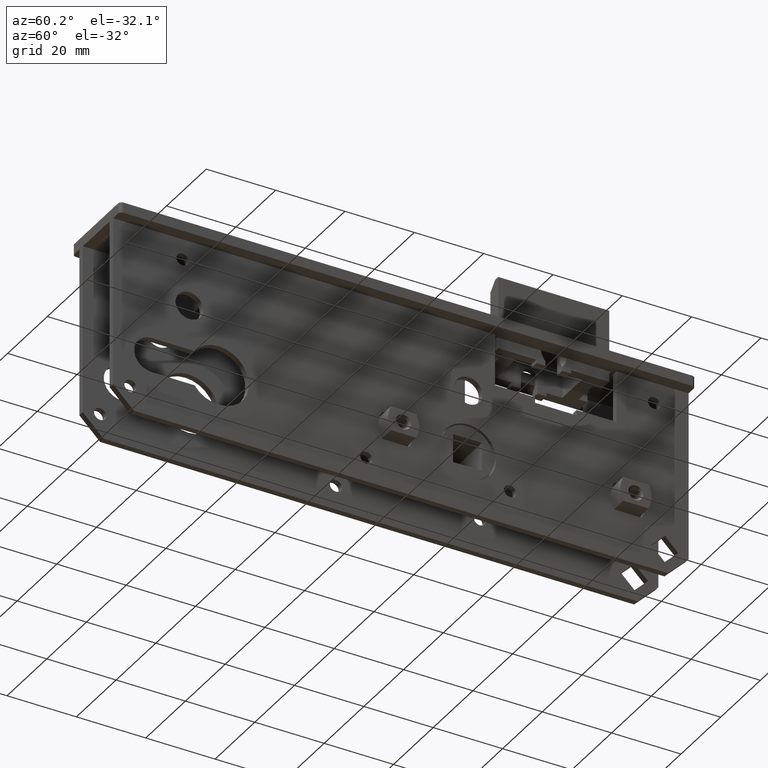
[diagram: clean part render]
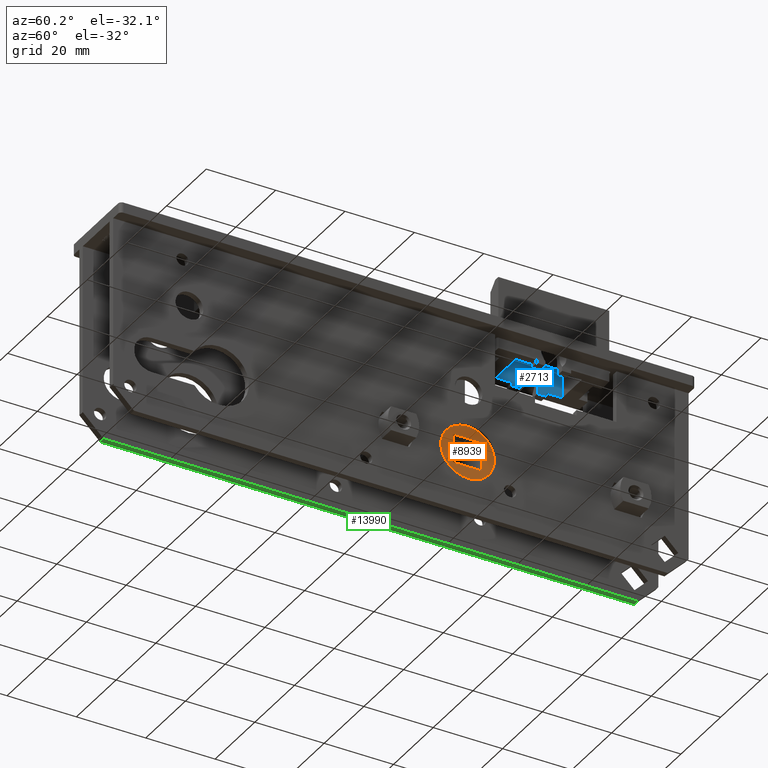
[diagram: same view with three faces highlighted in distinct colors, each labeled with its STEP entity id]
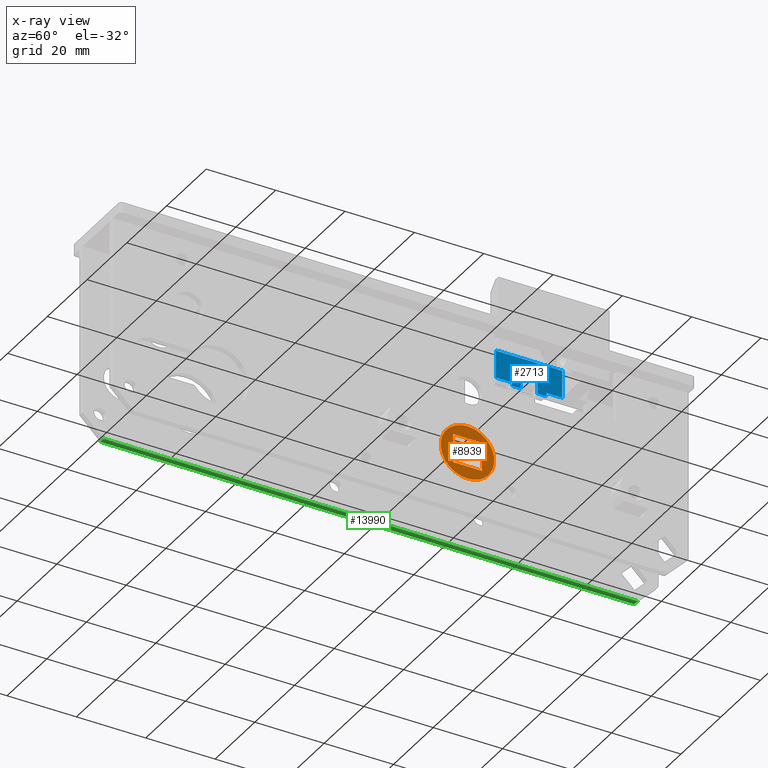
[diagram: x-ray of the same camera — body ghosted, the three highlighted faces saturated]
A machine part, auxiliary view with three faces highlighted in distinct colors.
The next image is the same camera in x-ray (body ghosted, the three faces saturated) — at least one of them is partly hidden behind the body in this view.
Their STEP definitions:

[orange] entity #8939 — the highlighted planar face has unit normal (1, 0, 0).
#435 = CARTESIAN_POINT ( 'NONE',  ( 8.000000000000000000, 0.000000000000000000, -7.750000000000000000 ) ) ;
#1184 = CARTESIAN_POINT ( 'NONE',  ( 8.000000000000000000, 4.150000000000000355, -4.150000000000001243 ) ) ;
#1647 = DIRECTION ( 'NONE',  ( 0.000000000000000000, 0.000000000000000000, -1.000000000000000000 ) ) ;
#1867 = VERTEX_POINT ( 'NONE', #1184 ) ;
#2110 = ORIENTED_EDGE ( 'NONE', *, *, #3452, .F. ) ;
#2268 = AXIS2_PLACEMENT_3D ( 'NONE', #17330, #11102, #1647 ) ;
#2835 = VECTOR ( 'NONE', #14314, 1000.000000000000000 ) ;
#2871 = AXIS2_PLACEMENT_3D ( 'NONE', #5149, #13230, #11490 ) ;
#3452 = EDGE_CURVE ( 'NONE', #7979, #8262, #3741, .T. ) ;
#3490 = VECTOR ( 'NONE', #17403, 1000.000000000000000 ) ;
#3741 = LINE ( 'NONE', #10890, #3490 ) ;
#3878 = DIRECTION ( 'NONE',  ( -0.000000000000000000, -0.000000000000000000, 1.000000000000000000 ) ) ;
#4729 = PLANE ( 'NONE',  #2268 ) ;
#5149 = CARTESIAN_POINT ( 'NONE',  ( 8.000000000000000000, 0.000000000000000000, 0.000000000000000000 ) ) ;
#7503 = LINE ( 'NONE', #11719, #15649 ) ;
#7708 = CIRCLE ( 'NONE', #2871, 7.750000000000000000 ) ;
#7735 = EDGE_LOOP ( 'NONE', ( #17326, #14357, #2110, #10329 ) ) ;
#7979 = VERTEX_POINT ( 'NONE', #12034 ) ;
#8000 = LINE ( 'NONE', #18938, #2835 ) ;
#8233 = FACE_OUTER_BOUND ( 'NONE', #16325, .T. ) ;
#8262 = VERTEX_POINT ( 'NONE', #9260 ) ;
#8939 = ADVANCED_FACE ( 'NONE', ( #8233, #18853 ), #4729, .T. ) ;
#9164 = VECTOR ( 'NONE', #17152, 1000.000000000000000 ) ;
#9246 = CARTESIAN_POINT ( 'NONE',  ( 8.000000000000000000, 4.150000000000000355, -4.150000000000001243 ) ) ;
#9260 = CARTESIAN_POINT ( 'NONE',  ( 8.000000000000000000, -4.150000000000001243, -4.150000000000002132 ) ) ;
#10329 = ORIENTED_EDGE ( 'NONE', *, *, #15739, .F. ) ;
#10890 = CARTESIAN_POINT ( 'NONE',  ( 8.000000000000000000, -4.150000000000001243, 4.149999999999998579 ) ) ;
#11102 = DIRECTION ( 'NONE',  ( 1.000000000000000000, 0.000000000000000000, 0.000000000000000000 ) ) ;
#11490 = DIRECTION ( 'NONE',  ( 0.000000000000000000, 0.000000000000000000, -1.000000000000000000 ) ) ;
#11719 = CARTESIAN_POINT ( 'NONE',  ( 8.000000000000000000, 4.150000000000000355, 4.150000000000000355 ) ) ;
#12034 = CARTESIAN_POINT ( 'NONE',  ( 8.000000000000000000, -4.150000000000001243, 4.149999999999998579 ) ) ;
#12139 = LINE ( 'NONE', #9246, #9164 ) ;
#12782 = EDGE_CURVE ( 'NONE', #1867, #19536, #7503, .T. ) ;
#13230 = DIRECTION ( 'NONE',  ( 1.000000000000000000, 0.000000000000000000, 0.000000000000000000 ) ) ;
#14272 = EDGE_CURVE ( 'NONE', #8262, #1867, #12139, .T. ) ;
#14314 = DIRECTION ( 'NONE',  ( 0.000000000000000000, -1.000000000000000000, -2.090028284309405749E-16 ) ) ;
#14357 = ORIENTED_EDGE ( 'NONE', *, *, #14272, .F. ) ;
#15020 = ORIENTED_EDGE ( 'NONE', *, *, #17936, .T. ) ;
#15649 = VECTOR ( 'NONE', #3878, 1000.000000000000000 ) ;
#15739 = EDGE_CURVE ( 'NONE', #19536, #7979, #8000, .T. ) ;
#16325 = EDGE_LOOP ( 'NONE', ( #15020 ) ) ;
#17152 = DIRECTION ( 'NONE',  ( -0.000000000000000000, 1.000000000000000000, 1.045014142154702874E-16 ) ) ;
#17326 = ORIENTED_EDGE ( 'NONE', *, *, #12782, .F. ) ;
#17330 = CARTESIAN_POINT ( 'NONE',  ( 8.000000000000000000, 0.000000000000000000, 0.000000000000000000 ) ) ;
#17403 = DIRECTION ( 'NONE',  ( 0.000000000000000000, 0.000000000000000000, -1.000000000000000000 ) ) ;
#17527 = CARTESIAN_POINT ( 'NONE',  ( 8.000000000000000000, 4.150000000000000355, 4.150000000000000355 ) ) ;
#17936 = EDGE_CURVE ( 'NONE', #19951, #19951, #7708, .T. ) ;
#18853 = FACE_BOUND ( 'NONE', #7735, .T. ) ;
#18938 = CARTESIAN_POINT ( 'NONE',  ( 8.000000000000000000, 4.150000000000000355, 4.150000000000000355 ) ) ;
#19536 = VERTEX_POINT ( 'NONE', #17527 ) ;
#19951 = VERTEX_POINT ( 'NONE', #435 ) ;

[blue] entity #2713 — the highlighted planar face has unit normal (-1, 0, 0).
#332 = ORIENTED_EDGE ( 'NONE', *, *, #2511, .T. ) ;
#333 = CARTESIAN_POINT ( 'NONE',  ( -4.949999999999997513, 0.000000000000000000, -7.500000000000000888 ) ) ;
#736 = EDGE_CURVE ( 'NONE', #2391, #18766, #19256, .T. ) ;
#752 = VECTOR ( 'NONE', #13469, 1000.000000000000000 ) ;
#780 = CARTESIAN_POINT ( 'NONE',  ( -4.949999999999995737, -4.999999999999999112, -11.50000000000000000 ) ) ;
#888 = ORIENTED_EDGE ( 'NONE', *, *, #20172, .F. ) ;
#1035 = DIRECTION ( 'NONE',  ( 1.362348279562937289E-16, 1.000000000000000000, -0.000000000000000000 ) ) ;
#1123 = LINE ( 'NONE', #10937, #4565 ) ;
#1268 = VERTEX_POINT ( 'NONE', #19941 ) ;
#1295 = FACE_OUTER_BOUND ( 'NONE', #10989, .T. ) ;
#1436 = CARTESIAN_POINT ( 'NONE',  ( -4.949999999999998401, -9.549999999999997158, -2.500000000000000444 ) ) ;
#1567 = LINE ( 'NONE', #16765, #14760 ) ;
#1829 = EDGE_CURVE ( 'NONE', #18637, #5247, #10733, .T. ) ;
#1857 = AXIS2_PLACEMENT_3D ( 'NONE', #333, #15943, #12848 ) ;
#2086 = ORIENTED_EDGE ( 'NONE', *, *, #4411, .T. ) ;
#2121 = VECTOR ( 'NONE', #11729, 1000.000000000000000 ) ;
#2236 = DIRECTION ( 'NONE',  ( -1.362348279562937289E-16, -1.000000000000000000, 0.000000000000000000 ) ) ;
#2391 = VERTEX_POINT ( 'NONE', #1436 ) ;
#2511 = EDGE_CURVE ( 'NONE', #20103, #9165, #13139, .T. ) ;
#2709 = LINE ( 'NONE', #19732, #752 ) ;
#2713 = ADVANCED_FACE ( 'NONE', ( #1295 ), #3944, .F. ) ;
#2963 = VECTOR ( 'NONE', #14587, 1000.000000000000000 ) ;
#2974 = DIRECTION ( 'NONE',  ( -0.000000000000000000, -0.000000000000000000, -1.000000000000000000 ) ) ;
#3448 = ORIENTED_EDGE ( 'NONE', *, *, #4656, .F. ) ;
#3944 = PLANE ( 'NONE',  #19389 ) ;
#4411 = EDGE_CURVE ( 'NONE', #16479, #14769, #12838, .T. ) ;
#4565 = VECTOR ( 'NONE', #2974, 1000.000000000000000 ) ;
#4656 = EDGE_CURVE ( 'NONE', #10928, #5247, #2709, .T. ) ;
#5105 = EDGE_CURVE ( 'NONE', #14769, #15410, #15516, .T. ) ;
#5247 = VERTEX_POINT ( 'NONE', #20151 ) ;
#5350 = VECTOR ( 'NONE', #12599, 1000.000000000000000 ) ;
#5354 = CARTESIAN_POINT ( 'NONE',  ( -4.949999999999995737, 5.000000000000000888, -11.50000000000000000 ) ) ;
#5554 = CARTESIAN_POINT ( 'NONE',  ( -4.949999999999997513, 2.399999999999999911, -7.500000000000000888 ) ) ;
#5702 = CARTESIAN_POINT ( 'NONE',  ( -4.949999999999995737, 9.550000000000004263, -10.50000000000000000 ) ) ;
#6032 = CARTESIAN_POINT ( 'NONE',  ( -4.949999999999996625, 2.399999999999999467, -2.500000000000001332 ) ) ;
#6994 = EDGE_CURVE ( 'NONE', #18766, #1268, #1123, .T. ) ;
#7184 = CARTESIAN_POINT ( 'NONE',  ( -4.949999999999995737, 9.550000000000004263, -2.500000000000000444 ) ) ;
#7269 = ORIENTED_EDGE ( 'NONE', *, *, #6994, .F. ) ;
#8296 = EDGE_CURVE ( 'NONE', #2391, #18637, #18097, .T. ) ;
#8555 = CARTESIAN_POINT ( 'NONE',  ( -4.949999999999995737, -2.399999999999999911, -11.50000000000000000 ) ) ;
#8678 = CARTESIAN_POINT ( 'NONE',  ( -4.949999999999997513, -2.399999999999999911, -7.500000000000000000 ) ) ;
#9165 = VERTEX_POINT ( 'NONE', #11279 ) ;
#9510 = CARTESIAN_POINT ( 'NONE',  ( -4.949999999999995737, 9.550000000000004263, -10.50000000000000000 ) ) ;
#9599 = DIRECTION ( 'NONE',  ( 1.477060964384026220E-32, 1.084202172485504681E-16, -1.000000000000000000 ) ) ;
#10718 = VECTOR ( 'NONE', #14023, 1000.000000000000000 ) ;
#10733 = LINE ( 'NONE', #5702, #11914 ) ;
#10783 = LINE ( 'NONE', #6032, #18649 ) ;
#10928 = VERTEX_POINT ( 'NONE', #780 ) ;
#10937 = CARTESIAN_POINT ( 'NONE',  ( -4.949999999999995737, 9.550000000000004263, -2.500000000000000444 ) ) ;
#10989 = EDGE_LOOP ( 'NONE', ( #888, #2086, #13126, #18408, #11209, #332, #11916, #7269, #12604, #17715, #20088, #3448 ) ) ;
#11150 = EDGE_CURVE ( 'NONE', #9165, #1268, #13016, .T. ) ;
#11209 = ORIENTED_EDGE ( 'NONE', *, *, #19415, .F. ) ;
#11279 = CARTESIAN_POINT ( 'NONE',  ( -4.949999999999995737, 5.000000000000000888, -10.50000000000000000 ) ) ;
#11659 = CARTESIAN_POINT ( 'NONE',  ( -4.949999999999995737, -4.999999999999999112, -11.50000000000000000 ) ) ;
#11729 = DIRECTION ( 'NONE',  ( -0.000000000000000000, -1.000000000000000000, -0.000000000000000000 ) ) ;
#11914 = VECTOR ( 'NONE', #1035, 1000.000000000000000 ) ;
#11916 = ORIENTED_EDGE ( 'NONE', *, *, #11150, .T. ) ;
#12088 = EDGE_CURVE ( 'NONE', #15410, #17769, #10783, .T. ) ;
#12599 = DIRECTION ( 'NONE',  ( 1.362348279562937289E-16, 1.000000000000000000, -0.000000000000000000 ) ) ;
#12604 = ORIENTED_EDGE ( 'NONE', *, *, #736, .F. ) ;
#12838 = LINE ( 'NONE', #16082, #2963 ) ;
#12848 = DIRECTION ( 'NONE',  ( 0.000000000000000000, -1.000000000000000000, 0.000000000000000000 ) ) ;
#13016 = LINE ( 'NONE', #9510, #5350 ) ;
#13126 = ORIENTED_EDGE ( 'NONE', *, *, #5105, .T. ) ;
#13139 = LINE ( 'NONE', #5354, #15329 ) ;
#13469 = DIRECTION ( 'NONE',  ( -0.000000000000000000, -0.000000000000000000, 1.000000000000000000 ) ) ;
#14023 = DIRECTION ( 'NONE',  ( -0.000000000000000000, -0.000000000000000000, -1.000000000000000000 ) ) ;
#14088 = CARTESIAN_POINT ( 'NONE',  ( -4.949999999999998401, -9.549999999999997158, -2.500000000000000444 ) ) ;
#14425 = CARTESIAN_POINT ( 'NONE',  ( -4.949999999999995737, 5.000000000000000888, -11.50000000000000000 ) ) ;
#14587 = DIRECTION ( 'NONE',  ( 0.000000000000000000, 0.000000000000000000, 1.000000000000000000 ) ) ;
#14760 = VECTOR ( 'NONE', #18396, 1000.000000000000000 ) ;
#14769 = VERTEX_POINT ( 'NONE', #8678 ) ;
#15049 = VECTOR ( 'NONE', #18713, 1000.000000000000000 ) ;
#15329 = VECTOR ( 'NONE', #18105, 1000.000000000000000 ) ;
#15410 = VERTEX_POINT ( 'NONE', #5554 ) ;
#15516 = CIRCLE ( 'NONE', #1857, 2.399999999999999911 ) ;
#15943 = DIRECTION ( 'NONE',  ( -1.000000000000000000, 1.362348279562937289E-16, 0.000000000000000000 ) ) ;
#15991 = CARTESIAN_POINT ( 'NONE',  ( -4.949999999999995737, 9.550000000000004263, -2.500000000000000444 ) ) ;
#16082 = CARTESIAN_POINT ( 'NONE',  ( -4.949999999999997513, -2.399999999999999467, -2.500000000000000444 ) ) ;
#16479 = VERTEX_POINT ( 'NONE', #8555 ) ;
#16765 = CARTESIAN_POINT ( 'NONE',  ( -4.949999999999995737, -4.999999999999999112, -11.50000000000000000 ) ) ;
#17017 = CARTESIAN_POINT ( 'NONE',  ( -4.949999999999995737, 9.550000000000004263, -2.500000000000000444 ) ) ;
#17715 = ORIENTED_EDGE ( 'NONE', *, *, #8296, .T. ) ;
#17769 = VERTEX_POINT ( 'NONE', #18738 ) ;
#18097 = LINE ( 'NONE', #14088, #10718 ) ;
#18105 = DIRECTION ( 'NONE',  ( -0.000000000000000000, -0.000000000000000000, 1.000000000000000000 ) ) ;
#18396 = DIRECTION ( 'NONE',  ( -0.000000000000000000, -1.000000000000000000, -0.000000000000000000 ) ) ;
#18408 = ORIENTED_EDGE ( 'NONE', *, *, #12088, .T. ) ;
#18637 = VERTEX_POINT ( 'NONE', #19622 ) ;
#18649 = VECTOR ( 'NONE', #9599, 1000.000000000000000 ) ;
#18713 = DIRECTION ( 'NONE',  ( 1.362348279562937289E-16, 1.000000000000000000, -0.000000000000000000 ) ) ;
#18738 = CARTESIAN_POINT ( 'NONE',  ( -4.949999999999995737, 2.400000000000000355, -11.50000000000000000 ) ) ;
#18766 = VERTEX_POINT ( 'NONE', #15991 ) ;
#19256 = LINE ( 'NONE', #17017, #15049 ) ;
#19389 = AXIS2_PLACEMENT_3D ( 'NONE', #7184, #19791, #2236 ) ;
#19415 = EDGE_CURVE ( 'NONE', #20103, #17769, #1567, .T. ) ;
#19620 = LINE ( 'NONE', #11659, #2121 ) ;
#19622 = CARTESIAN_POINT ( 'NONE',  ( -4.949999999999998401, -9.549999999999997158, -10.50000000000000000 ) ) ;
#19732 = CARTESIAN_POINT ( 'NONE',  ( -4.949999999999995737, -4.999999999999999112, -11.50000000000000000 ) ) ;
#19791 = DIRECTION ( 'NONE',  ( -1.000000000000000000, 1.362348279562937289E-16, 0.000000000000000000 ) ) ;
#19941 = CARTESIAN_POINT ( 'NONE',  ( -4.949999999999995737, 9.550000000000004263, -10.50000000000000000 ) ) ;
#20088 = ORIENTED_EDGE ( 'NONE', *, *, #1829, .T. ) ;
#20103 = VERTEX_POINT ( 'NONE', #14425 ) ;
#20151 = CARTESIAN_POINT ( 'NONE',  ( -4.949999999999997513, -4.999999999999999112, -10.50000000000000000 ) ) ;
#20172 = EDGE_CURVE ( 'NONE', #16479, #10928, #19620, .T. ) ;

[green] entity #13990 — the highlighted planar face has unit normal (0, 0, -1).
#977 = VERTEX_POINT ( 'NONE', #19139 ) ;
#2312 = PLANE ( 'NONE',  #16263 ) ;
#2724 = DIRECTION ( 'NONE',  ( 1.667602476305508856E-16, 1.000000000000000000, 0.000000000000000000 ) ) ;
#3745 = CARTESIAN_POINT ( 'NONE',  ( -6.750000000000001776, -77.00000000000001421, -56.50000000000000000 ) ) ;
#4683 = ORIENTED_EDGE ( 'NONE', *, *, #5565, .T. ) ;
#5565 = EDGE_CURVE ( 'NONE', #977, #15180, #5895, .T. ) ;
#5728 = DIRECTION ( 'NONE',  ( -1.000000000000000000, 0.000000000000000000, -0.000000000000000000 ) ) ;
#5895 = LINE ( 'NONE', #19656, #10868 ) ;
#6777 = DIRECTION ( 'NONE',  ( -1.000000000000000000, -0.000000000000000000, 0.000000000000000000 ) ) ;
#7267 = LINE ( 'NONE', #12913, #9474 ) ;
#7474 = FACE_OUTER_BOUND ( 'NONE', #12344, .T. ) ;
#8851 = CARTESIAN_POINT ( 'NONE',  ( -8.499999999999984013, 62.19499999999997186, -56.50000000000000000 ) ) ;
#9474 = VECTOR ( 'NONE', #6777, 1000.000000000000000 ) ;
#9892 = ORIENTED_EDGE ( 'NONE', *, *, #18134, .T. ) ;
#10868 = VECTOR ( 'NONE', #19584, 1000.000000000000000 ) ;
#11082 = VECTOR ( 'NONE', #2724, 1000.000000000000000 ) ;
#11608 = ORIENTED_EDGE ( 'NONE', *, *, #18746, .T. ) ;
#11886 = ORIENTED_EDGE ( 'NONE', *, *, #17125, .T. ) ;
#12344 = EDGE_LOOP ( 'NONE', ( #9892, #4683, #11886, #11608 ) ) ;
#12913 = CARTESIAN_POINT ( 'NONE',  ( -8.500000000000021316, -77.00000000000001421, -56.50000000000000000 ) ) ;
#13564 = VECTOR ( 'NONE', #19577, 1000.000000000000000 ) ;
#13939 = VERTEX_POINT ( 'NONE', #3745 ) ;
#13990 = ADVANCED_FACE ( 'NONE', ( #7474 ), #2312, .T. ) ;
#14979 = CARTESIAN_POINT ( 'NONE',  ( 0.000000000000000000, 0.000000000000000000, -56.50000000000000000 ) ) ;
#15180 = VERTEX_POINT ( 'NONE', #18666 ) ;
#15733 = LINE ( 'NONE', #8851, #11082 ) ;
#15761 = LINE ( 'NONE', #17774, #13564 ) ;
#16263 = AXIS2_PLACEMENT_3D ( 'NONE', #14979, #16481, #5728 ) ;
#16481 = DIRECTION ( 'NONE',  ( 0.000000000000000000, 0.000000000000000000, -1.000000000000000000 ) ) ;
#16627 = CARTESIAN_POINT ( 'NONE',  ( -8.500000000000019540, -77.00000000000001421, -56.50000000000000000 ) ) ;
#17125 = EDGE_CURVE ( 'NONE', #15180, #13939, #15761, .T. ) ;
#17774 = CARTESIAN_POINT ( 'NONE',  ( -6.749999999999979572, 82.99999999999998579, -56.50000000000000000 ) ) ;
#18134 = EDGE_CURVE ( 'NONE', #19714, #977, #15733, .T. ) ;
#18666 = CARTESIAN_POINT ( 'NONE',  ( -6.749999999999980460, 77.00000000000000000, -56.50000000000000000 ) ) ;
#18746 = EDGE_CURVE ( 'NONE', #13939, #19714, #7267, .T. ) ;
#19139 = CARTESIAN_POINT ( 'NONE',  ( -8.499999999999982236, 77.00000000000000000, -56.50000000000000000 ) ) ;
#19577 = DIRECTION ( 'NONE',  ( -1.250701857229131642E-16, -1.000000000000000000, 0.000000000000000000 ) ) ;
#19584 = DIRECTION ( 'NONE',  ( 1.000000000000000000, 0.000000000000000000, 0.000000000000000000 ) ) ;
#19656 = CARTESIAN_POINT ( 'NONE',  ( -6.749999999999979572, 77.00000000000000000, -56.50000000000000000 ) ) ;
#19714 = VERTEX_POINT ( 'NONE', #16627 ) ;